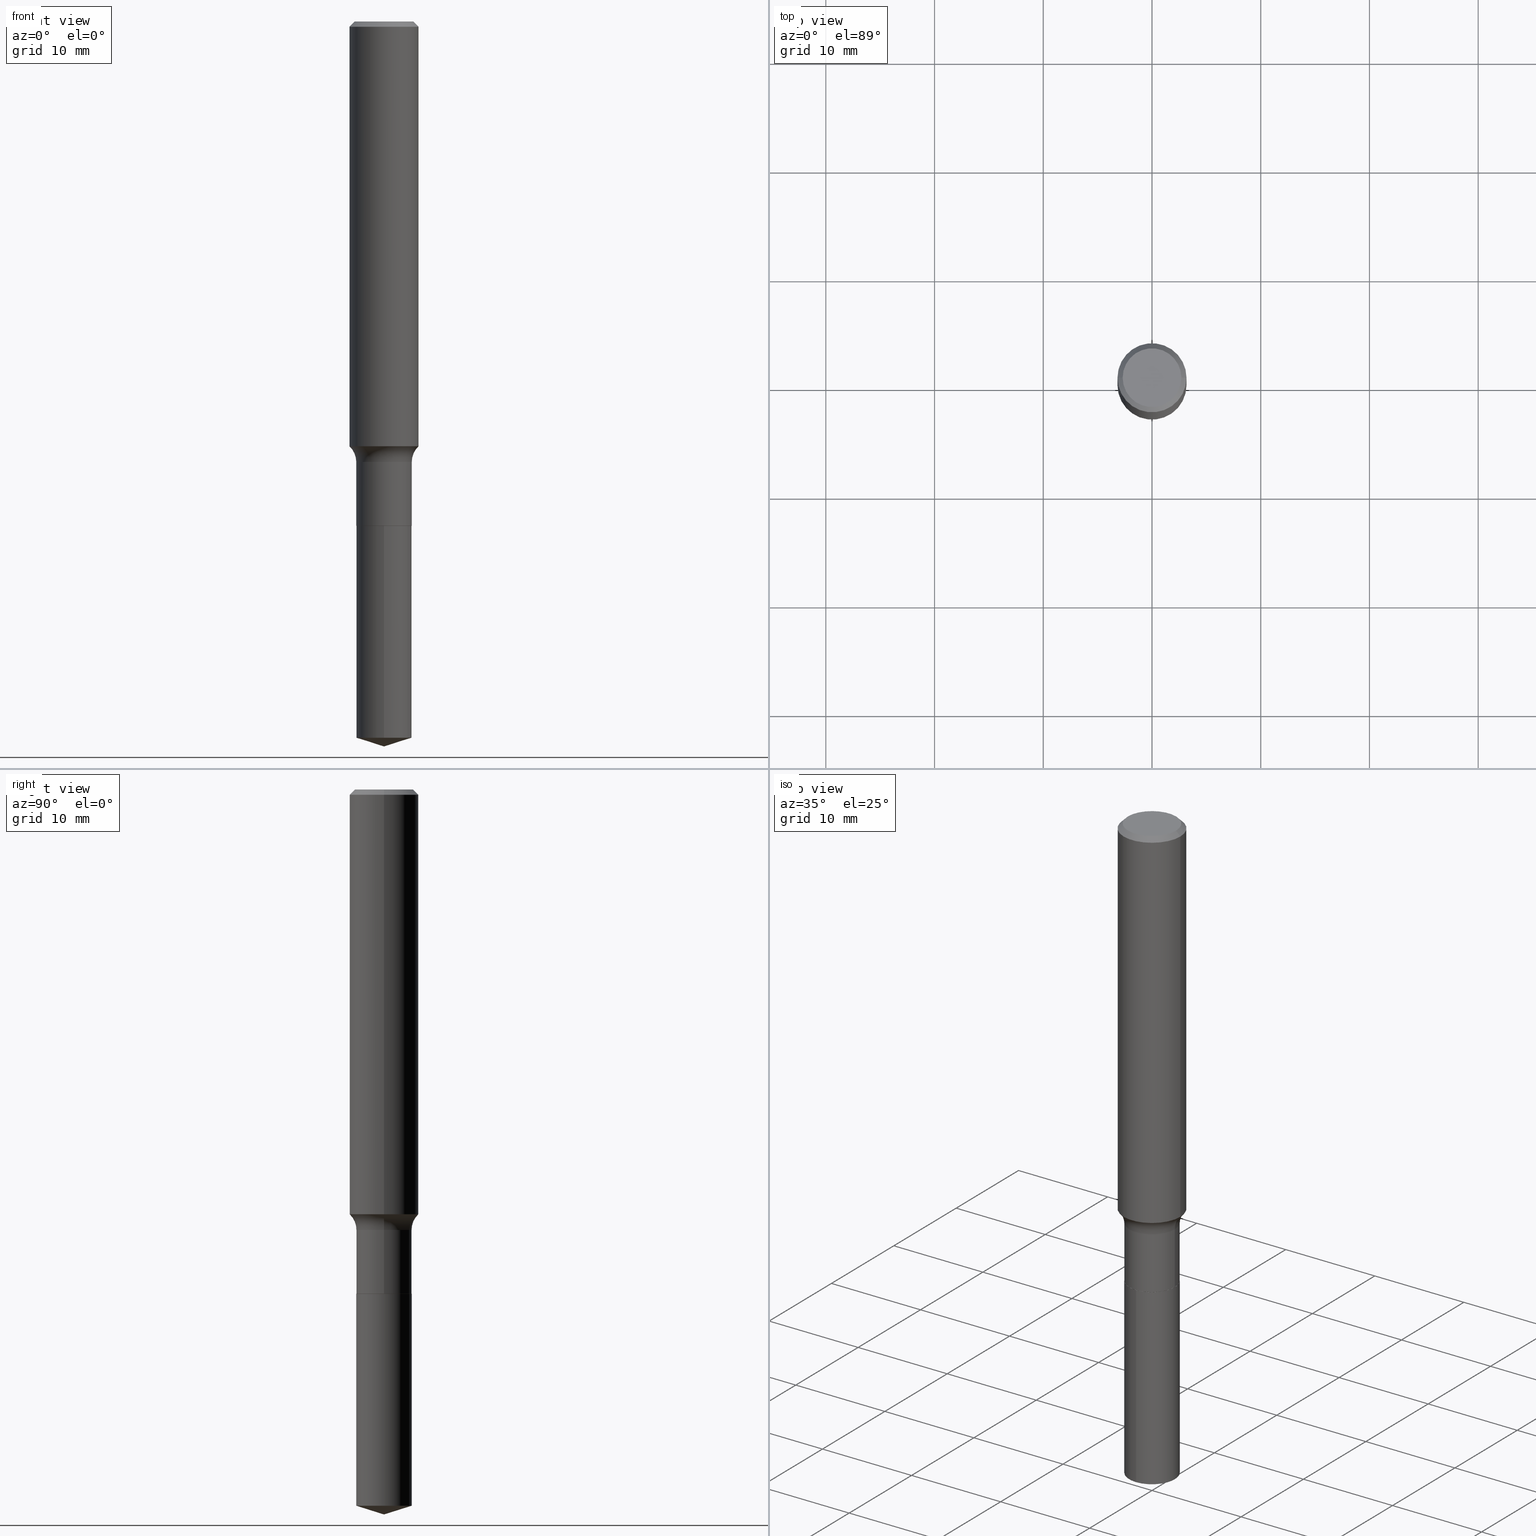
[diagram: canonical four-view strip — front | top / right | iso, engineering-drawing reading convention]
A machine part, canonical four-view strip (front | top / right | iso — engineering-drawing reading convention). The complete STEP part file that produces these views, byte-faithful:
ISO-10303-21;
HEADER;
FILE_DESCRIPTION (( 'STEP AP203' ),
    '1' );
FILE_NAME ('50015.STEP',
    '2024-04-19T12:45:40',
    ( '' ),
    ( '' ),
    'SwSTEP 2.0',
    'SolidWorks 2023',
    '' );
FILE_SCHEMA (( 'CONFIG_CONTROL_DESIGN' ));
ENDSEC;

DATA;
#1 = FACE_OUTER_BOUND ( 'NONE', #80, .T. ) ;
#2 = CARTESIAN_POINT ( 'NONE',  ( -0.1784999999999999920, -4.299895655855270678E-15, -1.594800000000000217 ) ) ;
#3 = ORIENTED_EDGE ( 'NONE', *, *, #244, .T. ) ;
#4 = CIRCLE ( 'NONE', #188, 0.1000000000000000056 ) ;
#5 = AXIS2_PLACEMENT_3D ( 'NONE', #2, #38, #310 ) ;
#6 = DIRECTION ( 'NONE',  ( -2.445374014991277107E-29, 3.491617085227932147E-15, 1.000000000000000000 ) ) ;
#7 = ADVANCED_FACE ( 'NONE', ( #23 ), #476, .T. ) ;
#8 = ADVANCED_BREP_SHAPE_REPRESENTATION ( '50015', ( #163, #324, #266 ), #62 ) ;
#9 = ORIENTED_EDGE ( 'NONE', *, *, #424, .F. ) ;
#10 = CARTESIAN_POINT ( 'NONE',  ( 4.465426040094059556E-29, -6.375444924727584257E-15, -1.826000000000000068 ) ) ;
#11 = ORIENTED_EDGE ( 'NONE', *, *, #105, .T. ) ;
#12 = DIRECTION ( 'NONE',  ( 1.000000000000000000, -6.982962677686266711E-15, 4.876176775795935232E-29 ) ) ;
#13 = VERTEX_POINT ( 'NONE', #58 ) ;
#14 = ORIENTED_EDGE ( 'NONE', *, *, #386, .T. ) ;
#15 = DIRECTION ( 'NONE',  ( 1.000000000000000000, -6.982962677686266711E-15, 4.876176775795935232E-29 ) ) ;
#16 = ORIENTED_EDGE ( 'NONE', *, *, #120, .T. ) ;
#17 = DIRECTION ( 'NONE',  ( -0.7071067811865451302, 2.468850131082231817E-15, -0.7071067811865499042 ) ) ;
#18 = ORIENTED_EDGE ( 'NONE', *, *, #74, .F. ) ;
#19 = DIRECTION ( 'NONE',  ( -6.982962677686266711E-15, -1.000000000000000000, 3.500519750498728492E-15 ) ) ;
#20 = ORIENTED_EDGE ( 'NONE', *, *, #424, .T. ) ;
#21 = VECTOR ( 'NONE', #63, 39.37007874015748143 ) ;
#22 = DIRECTION ( 'NONE',  ( -2.445468806185136597E-29, 3.491481338843145583E-15, 1.000000000000000000 ) ) ;
#23 = FACE_OUTER_BOUND ( 'NONE', #282, .T. ) ;
#24 = PERSON_AND_ORGANIZATION_ROLE ( 'creator' ) ;
#25 = DIRECTION ( 'NONE',  ( -2.445468806185136877E-29, 3.491481338843145188E-15, 1.000000000000000000 ) ) ;
#26 = EDGE_CURVE ( 'NONE', #86, #288, #122, .T. ) ;
#27 = APPROVAL_STATUS ( 'not_yet_approved' ) ;
#28 = AXIS2_PLACEMENT_3D ( 'NONE', #431, #394, #325 ) ;
#29 = FACE_OUTER_BOUND ( 'NONE', #150, .T. ) ;
#30 = CIRCLE ( 'NONE', #173, 0.1005000000000000060 ) ;
#31 = CARTESIAN_POINT ( 'NONE',  ( -0.1250000000000001110, 8.881784197001260212E-16, -6.148668862818637832E-30 ) ) ;
#32 = COORDINATED_UNIVERSAL_TIME_OFFSET ( 5, 0, .BEHIND. ) ;
#33 = CARTESIAN_POINT ( 'NONE',  ( 0.1004999999999999782, -6.270002188294518342E-15, -1.594800000000000217 ) ) ;
#34 = PERSON_AND_ORGANIZATION ( #252, #283 ) ;
#35 = DIRECTION ( 'NONE',  ( 1.000000000000000000, -6.982962677686264344E-15, 0.000000000000000000 ) ) ;
#36 = LOCAL_TIME ( 8, 45, 40.00000000000000000, #65 ) ;
#37 = DIRECTION ( 'NONE',  ( 1.000000000000000000, -6.982962677686261977E-15, 0.000000000000000000 ) ) ;
#38 = DIRECTION ( 'NONE',  ( 7.105427357601001859E-15, 1.000000000000000000, -3.491481338843145583E-15 ) ) ;
#39 = EDGE_CURVE ( 'NONE', #227, #86, #426, .T. ) ;
#40 = DIRECTION ( 'NONE',  ( 1.000000000000000000, -6.982962677686266711E-15, 4.876153107228683844E-29 ) ) ;
#41 = VERTEX_POINT ( 'NONE', #492 ) ;
#42 = DIRECTION ( 'NONE',  ( -2.445468806185136597E-29, 3.491481338843145583E-15, 1.000000000000000000 ) ) ;
#43 = ORIENTED_EDGE ( 'NONE', *, *, #213, .F. ) ;
#44 = CC_DESIGN_PERSON_AND_ORGANIZATION_ASSIGNMENT ( #327, #370, ( #134 ) ) ;
#45 = CARTESIAN_POINT ( 'NONE',  ( 0.1250000000000000000, -9.230275248247509846E-16, -0.01875000000000013115 ) ) ;
#46 = ORIENTED_EDGE ( 'NONE', *, *, #176, .F. ) ;
#47 = CYLINDRICAL_SURFACE ( 'NONE', #468, 0.1250000000000001110 ) ;
#48 = AXIS2_PLACEMENT_3D ( 'NONE', #211, #158, #463 ) ;
#49 = CARTESIAN_POINT ( 'NONE',  ( -7.017877491074251076E-16, -0.1005000000000063759, -1.825999999999999845 ) ) ;
#50 = ORIENTED_EDGE ( 'NONE', *, *, #146, .T. ) ;
#51 =( NAMED_UNIT ( * ) PLANE_ANGLE_UNIT ( ) SI_UNIT ( $, .RADIAN. ) );
#52 = ORIENTED_EDGE ( 'NONE', *, *, #198, .F. ) ;
#53 = DIRECTION ( 'NONE',  ( 6.776566513254252615E-15, 0.9537169507482281539, 0.3007057995042690668 ) ) ;
#54 = ORIENTED_EDGE ( 'NONE', *, *, #159, .F. ) ;
#55 = AXIS2_PLACEMENT_3D ( 'NONE', #115, #117, #201 ) ;
#56 = FACE_OUTER_BOUND ( 'NONE', #271, .T. ) ;
#57 = VERTEX_POINT ( 'NONE', #66 ) ;
#58 = CARTESIAN_POINT ( 'NONE',  ( 0.1250000000000001943, -6.242906681469453132E-15, -1.538039538409206042 ) ) ;
#59 = PERSON_AND_ORGANIZATION_ROLE ( 'creator' ) ;
#60 = CARTESIAN_POINT ( 'NONE',  ( 4.585254011597162998E-31, -6.546527510330944066E-17, -0.01875000000000013115 ) ) ;
#61 = SHAPE_DEFINITION_REPRESENTATION ( #481, #8 ) ;
#62 =( GEOMETRIC_REPRESENTATION_CONTEXT ( 3 ) GLOBAL_UNCERTAINTY_ASSIGNED_CONTEXT ( ( #92 ) ) GLOBAL_UNIT_ASSIGNED_CONTEXT ( ( #390, #51, #349 ) ) REPRESENTATION_CONTEXT ( 'NONE', 'WORKASPACE' ) );
#63 = DIRECTION ( 'NONE',  ( -0.7071067811866320607, 7.493145998870660238E-15, 0.7071067811864629737 ) ) ;
#64 = CIRCLE ( 'NONE', #98, 0.1005000000000000060 ) ;
#65 = COORDINATED_UNIVERSAL_TIME_OFFSET ( 5, 0, .BEHIND. ) ;
#66 = CARTESIAN_POINT ( 'NONE',  ( 0.1062499999999999972, -8.259777185439879685E-16, 7.182553477054055401E-19 ) ) ;
#67 = DIRECTION ( 'NONE',  ( -2.445468806185136597E-29, 3.491481338843145583E-15, 1.000000000000000000 ) ) ;
#68 = DIRECTION ( 'NONE',  ( -2.445468806185136597E-29, 3.491481338843145583E-15, 1.000000000000000000 ) ) ;
#69 = CYLINDRICAL_SURFACE ( 'NONE', #143, 0.1005000000000000060 ) ;
#70 = ORIENTED_EDGE ( 'NONE', *, *, #99, .F. ) ;
#71 = FACE_OUTER_BOUND ( 'NONE', #316, .T. ) ;
#72 = LINE ( 'NONE', #226, #358 ) ;
#73 = AXIS2_PLACEMENT_3D ( 'NONE', #302, #483, #214 ) ;
#74 = EDGE_CURVE ( 'NONE', #13, #114, #403, .T. ) ;
#75 = AXIS2_PLACEMENT_3D ( 'NONE', #466, #425, #19 ) ;
#76 = AXIS2_PLACEMENT_3D ( 'NONE', #480, #135, #220 ) ;
#77 = VECTOR ( 'NONE', #91, 39.37007874015748143 ) ;
#78 = CARTESIAN_POINT ( 'NONE',  ( -8.782355238379108562E-48, 1.253887571509288664E-33, 3.591276738499616421E-19 ) ) ;
#79 = CARTESIAN_POINT ( 'NONE',  ( 6.341792019811160052E-29, -9.054606260685446473E-15, -2.593312471717662326 ) ) ;
#80 = EDGE_LOOP ( 'NONE', ( #14, #377 ) ) ;
#81 = DIRECTION ( 'NONE',  ( -2.445468806185136597E-29, 3.491481338843145583E-15, 1.000000000000000000 ) ) ;
#82 = EDGE_LOOP ( 'NONE', ( #279, #229, #357 ) ) ;
#83 = CYLINDRICAL_SURFACE ( 'NONE', #171, 0.1005000000000000060 ) ;
#84 = ORIENTED_EDGE ( 'NONE', *, *, #88, .F. ) ;
#85 = DIRECTION ( 'NONE',  ( -6.982962677686265922E-15, -1.000000000000000000, 2.718256710113694497E-15 ) ) ;
#86 = VERTEX_POINT ( 'NONE', #293 ) ;
#87 = PERSON_AND_ORGANIZATION ( #252, #283 ) ;
#88 = EDGE_CURVE ( 'NONE', #277, #202, #4, .T. ) ;
#89 = DIRECTION ( 'NONE',  ( 2.445468806185136597E-29, -3.491481338843145583E-15, -1.000000000000000000 ) ) ;
#90 = PERSON_AND_ORGANIZATION_ROLE ( 'classification_officer' ) ;
#91 = DIRECTION ( 'NONE',  ( 0.7071067811866320607, -2.468850131083142557E-15, 0.7071067811864629737 ) ) ;
#92 = UNCERTAINTY_MEASURE_WITH_UNIT (LENGTH_MEASURE( 1.000000000000000082E-05 ), #390, 'distance_accuracy_value', 'NONE');
#93 = MECHANICAL_CONTEXT ( 'NONE', #155, 'mechanical' ) ;
#94 = LINE ( 'NONE', #142, #389 ) ;
#95 = DATE_AND_TIME ( #364, #396 ) ;
#96 = VECTOR ( 'NONE', #17, 39.37007874015748143 ) ;
#97 = DIRECTION ( 'NONE',  ( 2.445468806185136597E-29, -3.491481338843145583E-15, -1.000000000000000000 ) ) ;
#98 = AXIS2_PLACEMENT_3D ( 'NONE', #177, #401, #447 ) ;
#99 = EDGE_CURVE ( 'NONE', #13, #227, #300, .T. ) ;
#100 = DIRECTION ( 'NONE',  ( -2.445374014991277107E-29, 3.491617085227932147E-15, 1.000000000000000000 ) ) ;
#101 = DIRECTION ( 'NONE',  ( 1.000000000000000000, -6.982962677686266711E-15, 0.000000000000000000 ) ) ;
#102 = EDGE_CURVE ( 'NONE', #434, #41, #232, .T. ) ;
#103 = ADVANCED_FACE ( 'NONE', ( #439 ), #446, .F. ) ;
#104 = DIRECTION ( 'NONE',  ( -2.445468806185136597E-29, 3.491481338843145583E-15, 1.000000000000000000 ) ) ;
#105 = EDGE_CURVE ( 'NONE', #457, #470, #254, .T. ) ;
#106 = LINE ( 'NONE', #270, #405 ) ;
#107 = CC_DESIGN_PERSON_AND_ORGANIZATION_ASSIGNMENT ( #398, #24, ( #305 ) ) ;
#108 = FACE_OUTER_BOUND ( 'NONE', #126, .T. ) ;
#109 = ORIENTED_EDGE ( 'NONE', *, *, #332, .F. ) ;
#110 = DIRECTION ( 'NONE',  ( 1.000000000000000000, -6.982962677686266711E-15, 4.876176775795935793E-29 ) ) ;
#111 = AXIS2_PLACEMENT_3D ( 'NONE', #263, #444, #259 ) ;
#112 = CONICAL_SURFACE ( 'NONE', #411, 0.1000000000000000056, 0.7853981633975678500 ) ;
#113 = DIRECTION ( 'NONE',  ( -2.445468806185136597E-29, 3.491481338843145583E-15, 1.000000000000000000 ) ) ;
#114 = VERTEX_POINT ( 'NONE', #33 ) ;
#115 = CARTESIAN_POINT ( 'NONE',  ( 3.900033652104055886E-29, -5.568214439187049453E-15, -1.594800000000000217 ) ) ;
#116 = ORIENTED_EDGE ( 'NONE', *, *, #118, .F. ) ;
#117 = DIRECTION ( 'NONE',  ( -2.445468806185136597E-29, 3.491481338843145583E-15, 1.000000000000000000 ) ) ;
#118 = EDGE_CURVE ( 'NONE', #318, #470, #380, .T. ) ;
#119 = ORIENTED_EDGE ( 'NONE', *, *, #189, .T. ) ;
#120 = EDGE_CURVE ( 'NONE', #202, #277, #335, .T. ) ;
#121 = CIRCLE ( 'NONE', #402, 0.1250000000000001943 ) ;
#122 = CIRCLE ( 'NONE', #48, 0.1250000000000000000 ) ;
#123 = AXIS2_PLACEMENT_3D ( 'NONE', #78, #156, #193 ) ;
#124 = FACE_OUTER_BOUND ( 'NONE', #309, .T. ) ;
#125 = ORIENTED_EDGE ( 'NONE', *, *, #351, .T. ) ;
#126 = EDGE_LOOP ( 'NONE', ( #379, #125, #154, #290 ) ) ;
#127 = ADVANCED_FACE ( 'NONE', ( #29 ), #445, .T. ) ;
#128 = CARTESIAN_POINT ( 'NONE',  ( 0.1005000000000000338, -7.075486933165632432E-15, -1.825500000000000345 ) ) ;
#129 = ORIENTED_EDGE ( 'NONE', *, *, #443, .F. ) ;
#130 = DESIGN_CONTEXT ( 'detailed design', #136, 'design' ) ;
#131 = SECURITY_CLASSIFICATION ( '', '', #253 ) ;
#132 = DIRECTION ( 'NONE',  ( -2.445468806185136597E-29, 3.491481338843145583E-15, 1.000000000000000000 ) ) ;
#133 = DIMENSIONAL_EXPONENTS ( 1.000000000000000000, 0.000000000000000000, 0.000000000000000000, 0.000000000000000000, 0.000000000000000000, 0.000000000000000000, 0.000000000000000000 ) ;
#134 = PRODUCT ( '50015', '50015', '', ( #93 ) ) ;
#135 = DIRECTION ( 'NONE',  ( -2.445468806185136597E-29, 3.491481338843145583E-15, 1.000000000000000000 ) ) ;
#136 = APPLICATION_CONTEXT ( 'configuration controlled 3d designs of mechanical parts and assemblies' ) ;
#137 = ADVANCED_FACE ( 'NONE', ( #363 ), #174, .T. ) ;
#138 = PERSON_AND_ORGANIZATION ( #252, #283 ) ;
#139 = CARTESIAN_POINT ( 'NONE',  ( 4.465426040094059556E-29, -6.375444924727584257E-15, -1.826000000000000068 ) ) ;
#140 = CIRCLE ( 'NONE', #164, 0.1062499999999999972 ) ;
#141 = CC_DESIGN_APPROVAL ( #448, ( #305 ) ) ;
#142 = CARTESIAN_POINT ( 'NONE',  ( 0.1004999999999999921, -7.017877491074697768E-16, 4.900557659674914995E-30 ) ) ;
#143 = AXIS2_PLACEMENT_3D ( 'NONE', #10, #6, #376 ) ;
#144 = DATE_AND_TIME ( #333, #149 ) ;
#145 = DIRECTION ( 'NONE',  ( -2.445468806185136877E-29, 3.491481338843145188E-15, 1.000000000000000000 ) ) ;
#146 = EDGE_CURVE ( 'NONE', #239, #457, #64, .T. ) ;
#147 = CARTESIAN_POINT ( 'NONE',  ( 3.900033652104055886E-29, -5.568214439187049453E-15, -1.594800000000000217 ) ) ;
#148 = PLANE ( 'NONE',  #298 ) ;
#149 = LOCAL_TIME ( 8, 45, 40.00000000000000000, #172 ) ;
#150 = EDGE_LOOP ( 'NONE', ( #382, #415, #20, #160 ) ) ;
#151 = CARTESIAN_POINT ( 'NONE',  ( 4.464203305690967315E-29, -6.373699184058162754E-15, -1.825500000000000345 ) ) ;
#152 = ORIENTED_EDGE ( 'NONE', *, *, #195, .F. ) ;
#153 = CARTESIAN_POINT ( 'NONE',  ( -0.1250000000000001943, -4.481857927058541405E-15, -1.538039538409206042 ) ) ;
#154 = ORIENTED_EDGE ( 'NONE', *, *, #198, .T. ) ;
#155 = APPLICATION_CONTEXT ( 'configuration controlled 3d designs of mechanical parts and assemblies' ) ;
#156 = DIRECTION ( 'NONE',  ( 2.438088387897960049E-29, -3.491481338843145188E-15, -1.000000000000000000 ) ) ;
#157 = DIRECTION ( 'NONE',  ( 1.000000000000000000, -6.982962677686261977E-15, 0.000000000000000000 ) ) ;
#158 = DIRECTION ( 'NONE',  ( -2.445468806185136597E-29, 3.491481338843145583E-15, 1.000000000000000000 ) ) ;
#159 = EDGE_CURVE ( 'NONE', #288, #86, #217, .T. ) ;
#160 = ORIENTED_EDGE ( 'NONE', *, *, #26, .T. ) ;
#161 = CARTESIAN_POINT ( 'NONE',  ( 0.000000000000000000, 0.000000000000000000, 0.000000000000000000 ) ) ;
#162 = ORIENTED_EDGE ( 'NONE', *, *, #118, .T. ) ;
#163 = MANIFOLD_SOLID_BREP ( 'Body-Move/Copy2[1]', #428 ) ;
#164 = AXIS2_PLACEMENT_3D ( 'NONE', #374, #338, #40 ) ;
#165 = CC_DESIGN_SECURITY_CLASSIFICATION ( #131, ( #305 ) ) ;
#166 = DIRECTION ( 'NONE',  ( 1.000000000000000000, -6.982962677686264344E-15, 0.000000000000000000 ) ) ;
#167 = ORIENTED_EDGE ( 'NONE', *, *, #213, .T. ) ;
#168 = ORIENTED_EDGE ( 'NONE', *, *, #189, .F. ) ;
#169 = PERSON_AND_ORGANIZATION_ROLE ( 'design_supplier' ) ;
#170 = DIRECTION ( 'NONE',  ( 1.000000000000000000, -6.982962677686261977E-15, 0.000000000000000000 ) ) ;
#171 = AXIS2_PLACEMENT_3D ( 'NONE', #285, #199, #85 ) ;
#172 = COORDINATED_UNIVERSAL_TIME_OFFSET ( 5, 0, .BEHIND. ) ;
#173 = AXIS2_PLACEMENT_3D ( 'NONE', #343, #341, #184 ) ;
#174 = CYLINDRICAL_SURFACE ( 'NONE', #281, 0.1004999999999999921 ) ;
#175 = APPROVAL_STATUS ( 'not_yet_approved' ) ;
#176 = EDGE_CURVE ( 'NONE', #434, #114, #94, .T. ) ;
#177 = CARTESIAN_POINT ( 'NONE',  ( 6.341792019811160052E-29, -9.054606260685446473E-15, -2.593312471717662326 ) ) ;
#178 = CARTESIAN_POINT ( 'NONE',  ( 0.000000000000000000, 0.000000000000000000, 0.000000000000000000 ) ) ;
#179 = CARTESIAN_POINT ( 'NONE',  ( 3.761227713859099469E-29, -5.370036346758668215E-15, -1.538039538409206042 ) ) ;
#180 = APPROVAL_STATUS ( 'not_yet_approved' ) ;
#181 = CC_DESIGN_APPROVAL ( #236, ( #131 ) ) ;
#182 = DIRECTION ( 'NONE',  ( -1.000000000000000000, 6.982962677686266711E-15, 0.000000000000000000 ) ) ;
#183 = FACE_OUTER_BOUND ( 'NONE', #422, .T. ) ;
#184 = DIRECTION ( 'NONE',  ( -6.982962677686265922E-15, -1.000000000000000000, 2.718256710113694497E-15 ) ) ;
#185 = EDGE_LOOP ( 'NONE', ( #429, #192, #384 ) ) ;
#186 = CIRCLE ( 'NONE', #255, 0.1062499999999999972 ) ;
#187 = DIRECTION ( 'NONE',  ( -6.659769872151627355E-15, -0.9537169507482260444, 0.3007057995042756726 ) ) ;
#188 = AXIS2_PLACEMENT_3D ( 'NONE', #139, #337, #35 ) ;
#189 = EDGE_CURVE ( 'NONE', #202, #434, #223, .T. ) ;
#190 = CYLINDRICAL_SURFACE ( 'NONE', #356, 0.1004999999999999921 ) ;
#191 = ADVANCED_FACE ( 'NONE', ( #251 ), #308, .T. ) ;
#192 = ORIENTED_EDGE ( 'NONE', *, *, #260, .T. ) ;
#193 = DIRECTION ( 'NONE',  ( -1.000000000000000000, 6.982962677686265922E-15, -4.876176775795935793E-29 ) ) ;
#194 = ORIENTED_EDGE ( 'NONE', *, *, #340, .F. ) ;
#195 = EDGE_CURVE ( 'NONE', #277, #41, #331, .T. ) ;
#196 = CARTESIAN_POINT ( 'NONE',  ( -1.756471047675821712E-47, 2.507775143018577328E-33, 7.182553476999232843E-19 ) ) ;
#197 = LOCAL_TIME ( 8, 45, 40.00000000000000000, #32 ) ;
#198 = EDGE_CURVE ( 'NONE', #13, #288, #409, .T. ) ;
#199 = DIRECTION ( 'NONE',  ( -2.445374014991277107E-29, 3.491617085227932147E-15, 1.000000000000000000 ) ) ;
#200 = ORIENTED_EDGE ( 'NONE', *, *, #99, .T. ) ;
#201 = DIRECTION ( 'NONE',  ( 1.000000000000000000, -6.982962677686268288E-15, 4.883557194083113462E-29 ) ) ;
#202 = VERTEX_POINT ( 'NONE', #407 ) ;
#203 = PRODUCT_DEFINITION ( 'UNKNOWN', '', #305, #130 ) ;
#204 = CARTESIAN_POINT ( 'NONE',  ( 4.465426040094059556E-29, -6.375444924727584257E-15, -1.826000000000000068 ) ) ;
#205 = ORIENTED_EDGE ( 'NONE', *, *, #159, .T. ) ;
#206 = CIRCLE ( 'NONE', #342, 0.1004999999999999782 ) ;
#207 = AXIS2_PLACEMENT_3D ( 'NONE', #151, #42, #423 ) ;
#208 = CARTESIAN_POINT ( 'NONE',  ( 3.900033652104055886E-29, -5.568214439187049453E-15, -1.594800000000000217 ) ) ;
#209 = VERTEX_POINT ( 'NONE', #346 ) ;
#210 = APPLICATION_PROTOCOL_DEFINITION ( 'international standard', 'config_control_design', 1994, #136 ) ;
#211 = CARTESIAN_POINT ( 'NONE',  ( 4.585254011597162998E-31, -6.546527510330944066E-17, -0.01875000000000013115 ) ) ;
#212 = COORDINATED_UNIVERSAL_TIME_OFFSET ( 5, 0, .BEHIND. ) ;
#213 = EDGE_CURVE ( 'NONE', #239, #318, #72, .T. ) ;
#214 = DIRECTION ( 'NONE',  ( 1.000000000000000000, -6.982962677686264344E-15, 0.000000000000000000 ) ) ;
#215 = AXIS2_PLACEMENT_3D ( 'NONE', #208, #464, #157 ) ;
#216 = AXIS2_PLACEMENT_3D ( 'NONE', #371, #303, #170 ) ;
#217 = CIRCLE ( 'NONE', #301, 0.1250000000000000000 ) ;
#218 = DIRECTION ( 'NONE',  ( -2.445468806185136877E-29, 3.491481338843145188E-15, 1.000000000000000000 ) ) ;
#219 = PERSON_AND_ORGANIZATION ( #252, #283 ) ;
#220 = DIRECTION ( 'NONE',  ( 1.000000000000000000, -6.982962677686268288E-15, 0.000000000000000000 ) ) ;
#221 = ADVANCED_FACE ( 'NONE', ( #183 ), #69, .T. ) ;
#222 = APPLICATION_PROTOCOL_DEFINITION ( 'international standard', 'config_control_design', 1994, #155 ) ;
#223 = LINE ( 'NONE', #475, #77 ) ;
#224 = CONICAL_SURFACE ( 'NONE', #387, 124.8659371009142092, 1.265363707695889683 ) ;
#225 = CARTESIAN_POINT ( 'NONE',  ( 0.000000000000000000, 0.000000000000000000, 0.000000000000000000 ) ) ;
#226 = CARTESIAN_POINT ( 'NONE',  ( 7.140954494389453000E-16, 0.1004999999999936361, -1.826000000000000512 ) ) ;
#227 = VERTEX_POINT ( 'NONE', #153 ) ;
#228 = CYLINDRICAL_SURFACE ( 'NONE', #230, 0.1250000000000001110 ) ;
#229 = ORIENTED_EDGE ( 'NONE', *, *, #375, .T. ) ;
#230 = AXIS2_PLACEMENT_3D ( 'NONE', #273, #378, #12 ) ;
#231 = CARTESIAN_POINT ( 'NONE',  ( 0.1250000000000000000, -9.383356098140928781E-16, -0.01875000000000013115 ) ) ;
#232 = CIRCLE ( 'NONE', #76, 0.1005000000000000338 ) ;
#233 = VECTOR ( 'NONE', #100, 39.37007874015748143 ) ;
#234 = FACE_OUTER_BOUND ( 'NONE', #286, .T. ) ;
#235 = ORIENTED_EDGE ( 'NONE', *, *, #339, .T. ) ;
#236 = APPROVAL ( #27, 'UNSPECIFIED' ) ;
#237 = EDGE_LOOP ( 'NONE', ( #462, #70, #241, #472 ) ) ;
#238 = DIRECTION ( 'NONE',  ( 1.000000000000000000, -6.982962677686266711E-15, 4.876153107228683844E-29 ) ) ;
#239 = VERTEX_POINT ( 'NONE', #276 ) ;
#240 = AXIS2_PLACEMENT_3D ( 'NONE', #367, #67, #294 ) ;
#241 = ORIENTED_EDGE ( 'NONE', *, *, #74, .T. ) ;
#242 = FACE_OUTER_BOUND ( 'NONE', #82, .T. ) ;
#243 = ORIENTED_EDGE ( 'NONE', *, *, #102, .F. ) ;
#244 = EDGE_CURVE ( 'NONE', #470, #318, #30, .T. ) ;
#245 = LINE ( 'NONE', #287, #96 ) ;
#246 = ORIENTED_EDGE ( 'NONE', *, *, #88, .T. ) ;
#247 = CIRCLE ( 'NONE', #215, 0.1004999999999999782 ) ;
#248 = DATE_AND_TIME ( #406, #474 ) ;
#249 = DIRECTION ( 'NONE',  ( -1.000000000000000000, 6.982962677686266711E-15, 0.000000000000000000 ) ) ;
#250 = APPROVAL ( #175, 'UNSPECIFIED' ) ;
#251 = FACE_OUTER_BOUND ( 'NONE', #395, .T. ) ;
#252 = PERSON ( 'UNSPECIFIED', 'UNSPECIFIED', 'UNSPECIFIED', ('UNSPECIFIED'), ('UNSPECIFIED'), ('UNSPECIFIED') ) ;
#253 = SECURITY_CLASSIFICATION_LEVEL ( 'unclassified' ) ;
#254 = LINE ( 'NONE', #486, #233 ) ;
#255 = AXIS2_PLACEMENT_3D ( 'NONE', #196, #22, #238 ) ;
#256 = CALENDAR_DATE ( 2024, 19, 4 ) ;
#257 = AXIS2_PLACEMENT_3D ( 'NONE', #179, #410, #264 ) ;
#258 = AXIS2_PLACEMENT_3D ( 'NONE', #79, #355, #317 ) ;
#259 = DIRECTION ( 'NONE',  ( -6.982962677686265922E-15, -1.000000000000000000, 2.718256710113694497E-15 ) ) ;
#260 = EDGE_CURVE ( 'NONE', #323, #457, #304, .T. ) ;
#261 = EDGE_CURVE ( 'NONE', #41, #434, #421, .T. ) ;
#262 = DIRECTION ( 'NONE',  ( 0.000000000000000000, 0.000000000000000000, 1.000000000000000000 ) ) ;
#263 = CARTESIAN_POINT ( 'NONE',  ( 4.465426040094059556E-29, -6.375444924727584257E-15, -1.826000000000000068 ) ) ;
#264 = DIRECTION ( 'NONE',  ( 1.000000000000000000, -6.982962677686267499E-15, 0.000000000000000000 ) ) ;
#265 = CC_DESIGN_PERSON_AND_ORGANIZATION_ASSIGNMENT ( #87, #169, ( #305 ) ) ;
#266 = AXIS2_PLACEMENT_3D ( 'NONE', #178, #262, #408 ) ;
#267 = DIRECTION ( 'NONE',  ( 1.000000000000000000, -6.982962677686267499E-15, 0.000000000000000000 ) ) ;
#268 = AXIS2_PLACEMENT_3D ( 'NONE', #326, #89, #249 ) ;
#269 = ORIENTED_EDGE ( 'NONE', *, *, #105, .F. ) ;
#270 = CARTESIAN_POINT ( 'NONE',  ( -0.1004999999999999921, 7.140954494389006308E-16, -4.943529765706180112E-30 ) ) ;
#271 = EDGE_LOOP ( 'NONE', ( #16, #467, #243, #168 ) ) ;
#272 = EDGE_CURVE ( 'NONE', #227, #209, #430, .T. ) ;
#273 = CARTESIAN_POINT ( 'NONE',  ( 0.000000000000000000, 0.000000000000000000, 0.000000000000000000 ) ) ;
#274 = VECTOR ( 'NONE', #53, 39.37007874015748143 ) ;
#275 = PLANE ( 'NONE',  #123 ) ;
#276 = CARTESIAN_POINT ( 'NONE',  ( 7.140954494389643313E-16, 0.1004999999999909993, -2.593312471717662770 ) ) ;
#277 = VERTEX_POINT ( 'NONE', #416 ) ;
#278 = LENGTH_MEASURE_WITH_UNIT ( LENGTH_MEASURE( 0.02539999999999999897 ), #322 );
#279 = ORIENTED_EDGE ( 'NONE', *, *, #260, .F. ) ;
#280 = PLANE ( 'NONE',  #28 ) ;
#281 = AXIS2_PLACEMENT_3D ( 'NONE', #330, #328, #442 ) ;
#282 = EDGE_LOOP ( 'NONE', ( #109, #235, #205, #9 ) ) ;
#283 = ORGANIZATION ( 'UNSPECIFIED', 'UNSPECIFIED', '' ) ;
#284 = AXIS2_PLACEMENT_3D ( 'NONE', #369, #68, #399 ) ;
#285 = CARTESIAN_POINT ( 'NONE',  ( 4.465426040094059556E-29, -6.375444924727584257E-15, -1.826000000000000068 ) ) ;
#286 = EDGE_LOOP ( 'NONE', ( #315, #320, #451, #194 ) ) ;
#287 = CARTESIAN_POINT ( 'NONE',  ( -0.1250000000000000000, 8.074050596074738982E-16, -0.01875000000000013115 ) ) ;
#288 = VERTEX_POINT ( 'NONE', #231 ) ;
#289 = DIRECTION ( 'NONE',  ( -6.982962677686266711E-15, -1.000000000000000000, 3.500519750498728492E-15 ) ) ;
#290 = ORIENTED_EDGE ( 'NONE', *, *, #26, .F. ) ;
#291 = APPROVAL_DATE_TIME ( #144, #448 ) ;
#292 = ADVANCED_FACE ( 'NONE', ( #456 ), #148, .F. ) ;
#293 = CARTESIAN_POINT ( 'NONE',  ( -0.1250000000000000000, -1.829572391230861870E-15, -0.01875000000000013115 ) ) ;
#294 = DIRECTION ( 'NONE',  ( 1.000000000000000000, -6.982962677686264344E-15, 0.000000000000000000 ) ) ;
#295 = DATE_AND_TIME ( #441, #197 ) ;
#296 = ADVANCED_FACE ( 'NONE', ( #234 ), #190, .T. ) ;
#297 = CARTESIAN_POINT ( 'NONE',  ( 0.1250000000000001110, -8.728703347107841277E-16, 6.095220969744924646E-30 ) ) ;
#298 = AXIS2_PLACEMENT_3D ( 'NONE', #306, #381, #311 ) ;
#299 = CONICAL_SURFACE ( 'NONE', #75, 124.8659371009142092, 1.265363707695889683 ) ;
#300 = CIRCLE ( 'NONE', #257, 0.1250000000000001943 ) ;
#301 = AXIS2_PLACEMENT_3D ( 'NONE', #60, #132, #101 ) ;
#302 = CARTESIAN_POINT ( 'NONE',  ( 4.465426040094059556E-29, -6.375444924727584257E-15, -1.826000000000000068 ) ) ;
#303 = DIRECTION ( 'NONE',  ( -6.982962677686266711E-15, -1.000000000000000000, 3.491481338843145583E-15 ) ) ;
#304 = LINE ( 'NONE', #420, #452 ) ;
#305 = PRODUCT_DEFINITION_FORMATION_WITH_SPECIFIED_SOURCE ( 'ANY', '', #134, .NOT_KNOWN. ) ;
#306 = CARTESIAN_POINT ( 'NONE',  ( 4.465426040094059556E-29, -6.375444924727584257E-15, -1.826000000000000068 ) ) ;
#307 = ADVANCED_FACE ( 'NONE', ( #108 ), #228, .T. ) ;
#308 = CONICAL_SURFACE ( 'NONE', #73, 0.1000000000000000056, 0.7853981633975678500 ) ;
#309 = EDGE_LOOP ( 'NONE', ( #397, #167, #361, #269 ) ) ;
#310 = DIRECTION ( 'NONE',  ( -1.000000000000000000, 7.105427357601001859E-15, 0.000000000000000000 ) ) ;
#311 = DIRECTION ( 'NONE',  ( 6.982962677686265922E-15, 1.000000000000000000, -3.491617085227932147E-15 ) ) ;
#312 = ORIENTED_EDGE ( 'NONE', *, *, #351, .F. ) ;
#313 = CC_DESIGN_APPROVAL ( #250, ( #203 ) ) ;
#314 = DIRECTION ( 'NONE',  ( -2.445468806185136597E-29, 3.491481338843145583E-15, 1.000000000000000000 ) ) ;
#315 = ORIENTED_EDGE ( 'NONE', *, *, #359, .F. ) ;
#316 = EDGE_LOOP ( 'NONE', ( #200, #459, #54, #52 ) ) ;
#317 = DIRECTION ( 'NONE',  ( -6.982962677686265922E-15, -1.000000000000000000, 5.436513420227388995E-15 ) ) ;
#318 = VERTEX_POINT ( 'NONE', #453 ) ;
#319 = FACE_OUTER_BOUND ( 'NONE', #348, .T. ) ;
#320 = ORIENTED_EDGE ( 'NONE', *, *, #261, .T. ) ;
#321 = TOROIDAL_SURFACE ( 'NONE', #55, 0.1784999999999999920, 0.07799999999999995826 ) ;
#322 =( LENGTH_UNIT ( ) NAMED_UNIT ( * ) SI_UNIT ( $, .METRE. ) );
#323 = VERTEX_POINT ( 'NONE', #458 ) ;
#324 = MANIFOLD_SOLID_BREP ( 'Body-Move/Copy2[2]', #460 ) ;
#325 = DIRECTION ( 'NONE',  ( 1.000000000000000000, -6.982962677686265922E-15, 4.876176775795935793E-29 ) ) ;
#326 = CARTESIAN_POINT ( 'NONE',  ( 4.585254011597162998E-31, -6.546527510330944066E-17, -0.01875000000000013115 ) ) ;
#327 = PERSON_AND_ORGANIZATION ( #252, #283 ) ;
#328 = DIRECTION ( 'NONE',  ( -2.445468806185136597E-29, 3.491481338843145583E-15, 1.000000000000000000 ) ) ;
#329 = COORDINATED_UNIVERSAL_TIME_OFFSET ( 5, 0, .BEHIND. ) ;
#330 = CARTESIAN_POINT ( 'NONE',  ( 0.000000000000000000, 0.000000000000000000, 0.000000000000000000 ) ) ;
#331 = LINE ( 'NONE', #365, #21 ) ;
#332 = EDGE_CURVE ( 'NONE', #57, #352, #140, .T. ) ;
#333 = CALENDAR_DATE ( 2024, 19, 4 ) ;
#334 = ADVANCED_FACE ( 'NONE', ( #1 ), #275, .F. ) ;
#335 = CIRCLE ( 'NONE', #240, 0.1000000000000000056 ) ;
#336 = DATE_AND_TIME ( #256, #36 ) ;
#337 = DIRECTION ( 'NONE',  ( -2.445468806185136597E-29, 3.491481338843145583E-15, 1.000000000000000000 ) ) ;
#338 = DIRECTION ( 'NONE',  ( -2.445468806185136597E-29, 3.491481338843145583E-15, 1.000000000000000000 ) ) ;
#339 = EDGE_CURVE ( 'NONE', #57, #288, #383, .T. ) ;
#340 = EDGE_CURVE ( 'NONE', #209, #114, #206, .T. ) ;
#341 = DIRECTION ( 'NONE',  ( -2.445374014991277107E-29, 3.491617085227932147E-15, 1.000000000000000000 ) ) ;
#342 = AXIS2_PLACEMENT_3D ( 'NONE', #147, #314, #37 ) ;
#343 = CARTESIAN_POINT ( 'NONE',  ( 4.465426040094059556E-29, -6.375444924727584257E-15, -1.826000000000000068 ) ) ;
#344 = ORIENTED_EDGE ( 'NONE', *, *, #272, .T. ) ;
#345 = CC_DESIGN_DATE_AND_TIME_ASSIGNMENT ( #95, #400, ( #131 ) ) ;
#346 = CARTESIAN_POINT ( 'NONE',  ( -0.1004999999999999782, -5.256861362183704782E-15, -1.594800000000000217 ) ) ;
#347 = DIRECTION ( 'NONE',  ( 0.7071067811865451302, -7.319954787623248157E-15, -0.7071067811865499042 ) ) ;
#348 = EDGE_LOOP ( 'NONE', ( #312, #344, #437, #18 ) ) ;
#349 =( NAMED_UNIT ( * ) SI_UNIT ( $, .STERADIAN. ) SOLID_ANGLE_UNIT ( ) );
#350 = FACE_OUTER_BOUND ( 'NONE', #433, .T. ) ;
#351 = EDGE_CURVE ( 'NONE', #227, #13, #121, .T. ) ;
#352 = VERTEX_POINT ( 'NONE', #413 ) ;
#353 = FACE_OUTER_BOUND ( 'NONE', #185, .T. ) ;
#354 = ORIENTED_EDGE ( 'NONE', *, *, #261, .F. ) ;
#355 = DIRECTION ( 'NONE',  ( -2.445374014991277107E-29, 3.491617085227932147E-15, 1.000000000000000000 ) ) ;
#356 = AXIS2_PLACEMENT_3D ( 'NONE', #225, #113, #110 ) ;
#357 = ORIENTED_EDGE ( 'NONE', *, *, #372, .F. ) ;
#358 = VECTOR ( 'NONE', #461, 39.37007874015748143 ) ;
#359 = EDGE_CURVE ( 'NONE', #41, #209, #106, .T. ) ;
#360 = LINE ( 'NONE', #471, #274 ) ;
#361 = ORIENTED_EDGE ( 'NONE', *, *, #244, .F. ) ;
#362 = APPROVAL_ROLE ( '' ) ;
#363 = FACE_OUTER_BOUND ( 'NONE', #393, .T. ) ;
#364 = CALENDAR_DATE ( 2024, 19, 4 ) ;
#365 = CARTESIAN_POINT ( 'NONE',  ( -0.1000000000000000056, -5.664902188967483441E-15, -1.826000000000000068 ) ) ;
#366 = VECTOR ( 'NONE', #218, 39.37007874015748143 ) ;
#367 = CARTESIAN_POINT ( 'NONE',  ( 4.465426040094059556E-29, -6.375444924727584257E-15, -1.826000000000000068 ) ) ;
#368 = ADVANCED_FACE ( 'NONE', ( #71 ), #47, .T. ) ;
#369 = CARTESIAN_POINT ( 'NONE',  ( 3.900033652104055886E-29, -5.568214439187049453E-15, -1.594800000000000217 ) ) ;
#370 = PERSON_AND_ORGANIZATION_ROLE ( 'design_owner' ) ;
#371 = CARTESIAN_POINT ( 'NONE',  ( 0.1784999999999999920, -6.814673277154047966E-15, -1.594800000000000217 ) ) ;
#372 = EDGE_CURVE ( 'NONE', #457, #239, #487, .T. ) ;
#373 = PRODUCT_RELATED_PRODUCT_CATEGORY ( 'detail', '', ( #134 ) ) ;
#374 = CARTESIAN_POINT ( 'NONE',  ( -1.756471047675821712E-47, 2.507775143018577328E-33, 7.182553476999232843E-19 ) ) ;
#375 = EDGE_CURVE ( 'NONE', #323, #239, #360, .T. ) ;
#376 = DIRECTION ( 'NONE',  ( -6.982962677686265922E-15, -1.000000000000000000, 2.718256710113694497E-15 ) ) ;
#377 = ORIENTED_EDGE ( 'NONE', *, *, #332, .T. ) ;
#378 = DIRECTION ( 'NONE',  ( -2.445468806185136597E-29, 3.491481338843145583E-15, 1.000000000000000000 ) ) ;
#379 = ORIENTED_EDGE ( 'NONE', *, *, #39, .F. ) ;
#380 = CIRCLE ( 'NONE', #111, 0.1005000000000000060 ) ;
#381 = DIRECTION ( 'NONE',  ( 2.445374014991276827E-29, -3.491617085227932147E-15, -1.000000000000000000 ) ) ;
#382 = ORIENTED_EDGE ( 'NONE', *, *, #339, .F. ) ;
#383 = LINE ( 'NONE', #45, #417 ) ;
#384 = ORIENTED_EDGE ( 'NONE', *, *, #146, .F. ) ;
#385 = CARTESIAN_POINT ( 'NONE',  ( -7.017877491074065693E-16, -0.1005000000000090959, -2.593312471717661882 ) ) ;
#386 = EDGE_CURVE ( 'NONE', #352, #57, #186, .T. ) ;
#387 = AXIS2_PLACEMENT_3D ( 'NONE', #427, #392, #289 ) ;
#388 = EDGE_LOOP ( 'NONE', ( #3, #162 ) ) ;
#389 = VECTOR ( 'NONE', #25, 39.37007874015748143 ) ;
#390 =( CONVERSION_BASED_UNIT ( 'INCH', #278 ) LENGTH_UNIT ( ) NAMED_UNIT ( #133 ) );
#391 = ORIENTED_EDGE ( 'NONE', *, *, #120, .F. ) ;
#392 = DIRECTION ( 'NONE',  ( -2.445374014991277107E-29, 3.491617085227932147E-15, 1.000000000000000000 ) ) ;
#393 = EDGE_LOOP ( 'NONE', ( #465, #454, #129, #46 ) ) ;
#394 = DIRECTION ( 'NONE',  ( -2.438088387897960049E-29, 3.491481338843145188E-15, 1.000000000000000000 ) ) ;
#395 = EDGE_LOOP ( 'NONE', ( #152, #246, #119, #354 ) ) ;
#396 = LOCAL_TIME ( 8, 45, 40.00000000000000000, #212 ) ;
#397 = ORIENTED_EDGE ( 'NONE', *, *, #372, .T. ) ;
#398 = PERSON_AND_ORGANIZATION ( #252, #283 ) ;
#399 = DIRECTION ( 'NONE',  ( 1.000000000000000000, -6.982962677686268288E-15, 4.883557194083113462E-29 ) ) ;
#400 = DATE_TIME_ROLE ( 'classification_date' ) ;
#401 = DIRECTION ( 'NONE',  ( -2.445374014991277107E-29, 3.491617085227932147E-15, 1.000000000000000000 ) ) ;
#402 = AXIS2_PLACEMENT_3D ( 'NONE', #450, #104, #267 ) ;
#403 = CIRCLE ( 'NONE', #216, 0.07799999999999995826 ) ;
#404 = ADVANCED_FACE ( 'NONE', ( #319 ), #321, .F. ) ;
#405 = VECTOR ( 'NONE', #414, 39.37007874015748143 ) ;
#406 = CALENDAR_DATE ( 2024, 19, 4 ) ;
#407 = CARTESIAN_POINT ( 'NONE',  ( 0.1000000000000000056, -7.073741192496210140E-15, -1.826000000000000068 ) ) ;
#408 = DIRECTION ( 'NONE',  ( 1.000000000000000000, 0.000000000000000000, 0.000000000000000000 ) ) ;
#409 = LINE ( 'NONE', #297, #366 ) ;
#410 = DIRECTION ( 'NONE',  ( -2.445468806185136597E-29, 3.491481338843145583E-15, 1.000000000000000000 ) ) ;
#411 = AXIS2_PLACEMENT_3D ( 'NONE', #204, #81, #166 ) ;
#412 = VECTOR ( 'NONE', #145, 39.37007874015748143 ) ;
#413 = CARTESIAN_POINT ( 'NONE',  ( -0.1062499999999999972, 7.746724220558198188E-16, 7.182553476946202362E-19 ) ) ;
#414 = DIRECTION ( 'NONE',  ( -2.445468806185136877E-29, 3.491481338843145188E-15, 1.000000000000000000 ) ) ;
#415 = ORIENTED_EDGE ( 'NONE', *, *, #386, .F. ) ;
#416 = CARTESIAN_POINT ( 'NONE',  ( -0.1000000000000000056, -5.662252961793372239E-15, -1.826000000000000068 ) ) ;
#417 = VECTOR ( 'NONE', #347, 39.37007874015748143 ) ;
#418 = ADVANCED_FACE ( 'NONE', ( #353 ), #299, .T. ) ;
#419 = APPROVAL_PERSON_ORGANIZATION ( #482, #448, #473 ) ;
#420 = CARTESIAN_POINT ( 'NONE',  ( 6.419106789352101425E-29, -9.165494848723320603E-15, -2.625000000000000000 ) ) ;
#421 = CIRCLE ( 'NONE', #207, 0.1005000000000000338 ) ;
#422 = EDGE_LOOP ( 'NONE', ( #43, #50, #11, #116 ) ) ;
#423 = DIRECTION ( 'NONE',  ( 1.000000000000000000, -6.982962677686268288E-15, 0.000000000000000000 ) ) ;
#424 = EDGE_CURVE ( 'NONE', #352, #86, #245, .T. ) ;
#425 = DIRECTION ( 'NONE',  ( -2.445374014991277107E-29, 3.491617085227932147E-15, 1.000000000000000000 ) ) ;
#426 = LINE ( 'NONE', #31, #412 ) ;
#427 = CARTESIAN_POINT ( 'NONE',  ( -8.985528764126953391E-28, 1.282999926000781299E-13, 36.74507874015748143 ) ) ;
#428 = CLOSED_SHELL ( 'NONE', ( #455, #485, #418, #221, #292 ) ) ;
#429 = ORIENTED_EDGE ( 'NONE', *, *, #375, .F. ) ;
#430 = CIRCLE ( 'NONE', #5, 0.07799999999999995826 ) ;
#431 = CARTESIAN_POINT ( 'NONE',  ( 4.465426040094059556E-29, -6.375444924727584257E-15, -1.826000000000000068 ) ) ;
#432 = CC_DESIGN_PERSON_AND_ORGANIZATION_ASSIGNMENT ( #219, #90, ( #131 ) ) ;
#433 = EDGE_LOOP ( 'NONE', ( #391, #84 ) ) ;
#434 = VERTEX_POINT ( 'NONE', #128 ) ;
#435 = PERSON_AND_ORGANIZATION ( #252, #283 ) ;
#436 = APPROVAL_PERSON_ORGANIZATION ( #34, #250, #362 ) ;
#437 = ORIENTED_EDGE ( 'NONE', *, *, #340, .T. ) ;
#438 = DATE_TIME_ROLE ( 'creation_date' ) ;
#439 = FACE_OUTER_BOUND ( 'NONE', #237, .T. ) ;
#440 = CC_DESIGN_DATE_AND_TIME_ASSIGNMENT ( #295, #438, ( #203 ) ) ;
#441 = CALENDAR_DATE ( 2024, 19, 4 ) ;
#442 = DIRECTION ( 'NONE',  ( 1.000000000000000000, -6.982962677686266711E-15, 4.876176775795935793E-29 ) ) ;
#443 = EDGE_CURVE ( 'NONE', #114, #209, #247, .T. ) ;
#444 = DIRECTION ( 'NONE',  ( -2.445374014991277107E-29, 3.491617085227932147E-15, 1.000000000000000000 ) ) ;
#445 = CONICAL_SURFACE ( 'NONE', #490, 0.1250000000000000000, 0.7853981633974449483 ) ;
#446 = TOROIDAL_SURFACE ( 'NONE', #284, 0.1784999999999999920, 0.07799999999999995826 ) ;
#447 = DIRECTION ( 'NONE',  ( -6.982962677686265922E-15, -1.000000000000000000, 5.436513420227388995E-15 ) ) ;
#448 = APPROVAL ( #180, 'UNSPECIFIED' ) ;
#449 = CARTESIAN_POINT ( 'NONE',  ( 4.585254011597162998E-31, -6.546527510330944066E-17, -0.01875000000000013115 ) ) ;
#450 = CARTESIAN_POINT ( 'NONE',  ( 3.761227713859099469E-29, -5.370036346758668215E-15, -1.538039538409206042 ) ) ;
#451 = ORIENTED_EDGE ( 'NONE', *, *, #176, .T. ) ;
#452 = VECTOR ( 'NONE', #187, 39.37007874015748854 ) ;
#453 = CARTESIAN_POINT ( 'NONE',  ( 7.140954494389642327E-16, 0.1004999999999936361, -1.826000000000000512 ) ) ;
#454 = ORIENTED_EDGE ( 'NONE', *, *, #359, .T. ) ;
#455 = ADVANCED_FACE ( 'NONE', ( #124 ), #83, .T. ) ;
#456 = FACE_OUTER_BOUND ( 'NONE', #388, .T. ) ;
#457 = VERTEX_POINT ( 'NONE', #385 ) ;
#458 = CARTESIAN_POINT ( 'NONE',  ( 6.419106789352101425E-29, -9.165494848723320603E-15, -2.625000000000000000 ) ) ;
#459 = ORIENTED_EDGE ( 'NONE', *, *, #39, .T. ) ;
#460 = CLOSED_SHELL ( 'NONE', ( #489, #7, #368, #404, #137, #296, #103, #307, #127, #334, #479, #191 ) ) ;
#461 = DIRECTION ( 'NONE',  ( -2.445374014991277107E-29, 3.491617085227932147E-15, 1.000000000000000000 ) ) ;
#462 = ORIENTED_EDGE ( 'NONE', *, *, #272, .F. ) ;
#463 = DIRECTION ( 'NONE',  ( 1.000000000000000000, -6.982962677686266711E-15, 0.000000000000000000 ) ) ;
#464 = DIRECTION ( 'NONE',  ( -2.445468806185136597E-29, 3.491481338843145583E-15, 1.000000000000000000 ) ) ;
#465 = ORIENTED_EDGE ( 'NONE', *, *, #102, .T. ) ;
#466 = CARTESIAN_POINT ( 'NONE',  ( -8.985528764126953391E-28, 1.282999926000781299E-13, 36.74507874015748143 ) ) ;
#467 = ORIENTED_EDGE ( 'NONE', *, *, #195, .T. ) ;
#468 = AXIS2_PLACEMENT_3D ( 'NONE', #161, #469, #15 ) ;
#469 = DIRECTION ( 'NONE',  ( -2.445468806185136597E-29, 3.491481338843145583E-15, 1.000000000000000000 ) ) ;
#470 = VERTEX_POINT ( 'NONE', #49 ) ;
#471 = CARTESIAN_POINT ( 'NONE',  ( 6.419456002359596041E-29, -9.164999102926080530E-15, -2.625000000000000000 ) ) ;
#472 = ORIENTED_EDGE ( 'NONE', *, *, #443, .T. ) ;
#473 = APPROVAL_ROLE ( '' ) ;
#474 = LOCAL_TIME ( 8, 45, 40.00000000000000000, #329 ) ;
#475 = CARTESIAN_POINT ( 'NONE',  ( 0.1000000000000000056, -7.073741192496210140E-15, -1.826000000000000068 ) ) ;
#476 = CONICAL_SURFACE ( 'NONE', #268, 0.1250000000000000000, 0.7853981633974449483 ) ;
#477 = CC_DESIGN_PERSON_AND_ORGANIZATION_ASSIGNMENT ( #435, #59, ( #203 ) ) ;
#478 = APPROVAL_DATE_TIME ( #248, #236 ) ;
#479 = ADVANCED_FACE ( 'NONE', ( #350 ), #280, .F. ) ;
#480 = CARTESIAN_POINT ( 'NONE',  ( 4.464203305690967315E-29, -6.373699184058162754E-15, -1.825500000000000345 ) ) ;
#481 = PRODUCT_DEFINITION_SHAPE ( 'NONE', 'NONE',  #203 ) ;
#482 = PERSON_AND_ORGANIZATION ( #252, #283 ) ;
#483 = DIRECTION ( 'NONE',  ( -2.445468806185136597E-29, 3.491481338843145583E-15, 1.000000000000000000 ) ) ;
#484 = APPROVAL_ROLE ( '' ) ;
#485 = ADVANCED_FACE ( 'NONE', ( #242 ), #224, .T. ) ;
#486 = CARTESIAN_POINT ( 'NONE',  ( -7.017877491074251076E-16, -0.1005000000000063759, -1.825999999999999845 ) ) ;
#487 = CIRCLE ( 'NONE', #258, 0.1005000000000000060 ) ;
#488 = APPROVAL_PERSON_ORGANIZATION ( #138, #236, #484 ) ;
#489 = ADVANCED_FACE ( 'NONE', ( #56 ), #112, .T. ) ;
#490 = AXIS2_PLACEMENT_3D ( 'NONE', #449, #97, #182 ) ;
#491 = APPROVAL_DATE_TIME ( #336, #250 ) ;
#492 = CARTESIAN_POINT ( 'NONE',  ( -0.1005000000000000476, -5.256861362183703993E-15, -1.825500000000000345 ) ) ;
ENDSEC;
END-ISO-10303-21;
